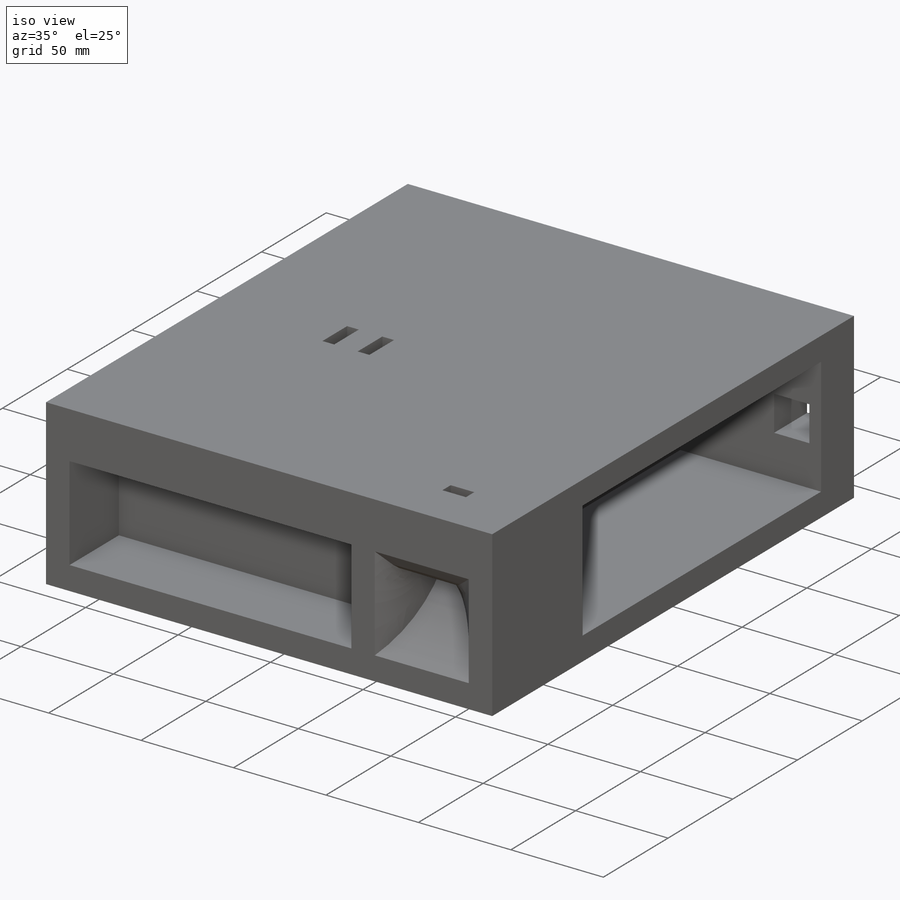
[diagram: iso view]
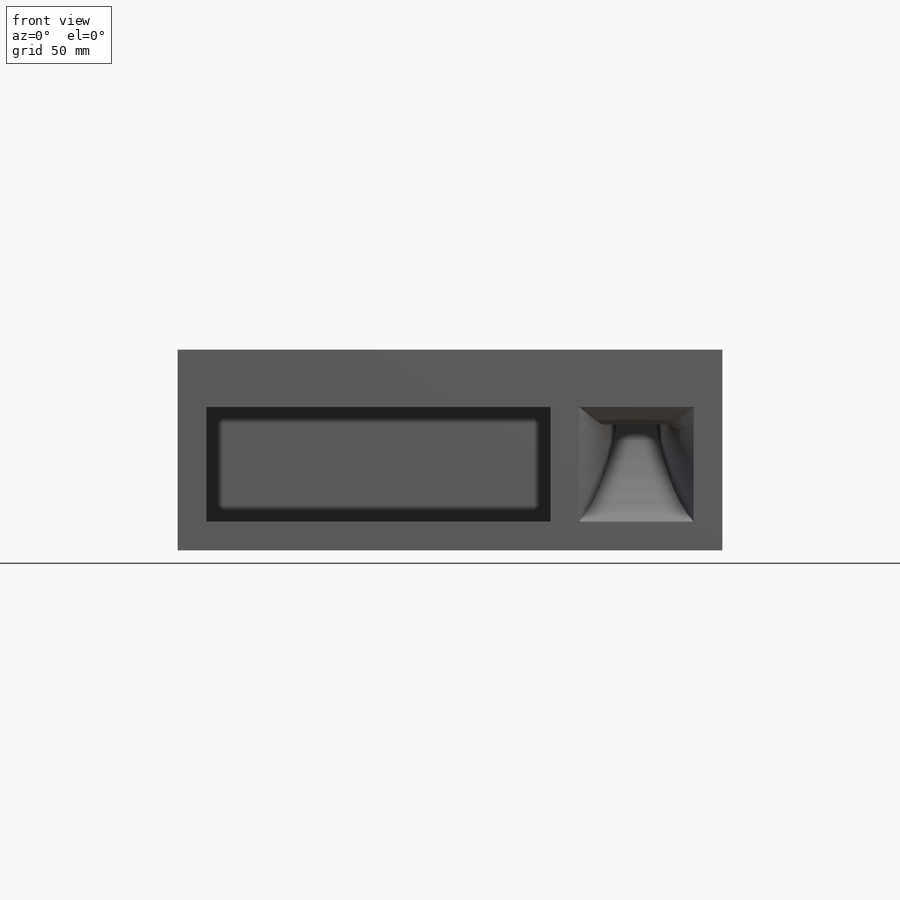
[diagram: front view]
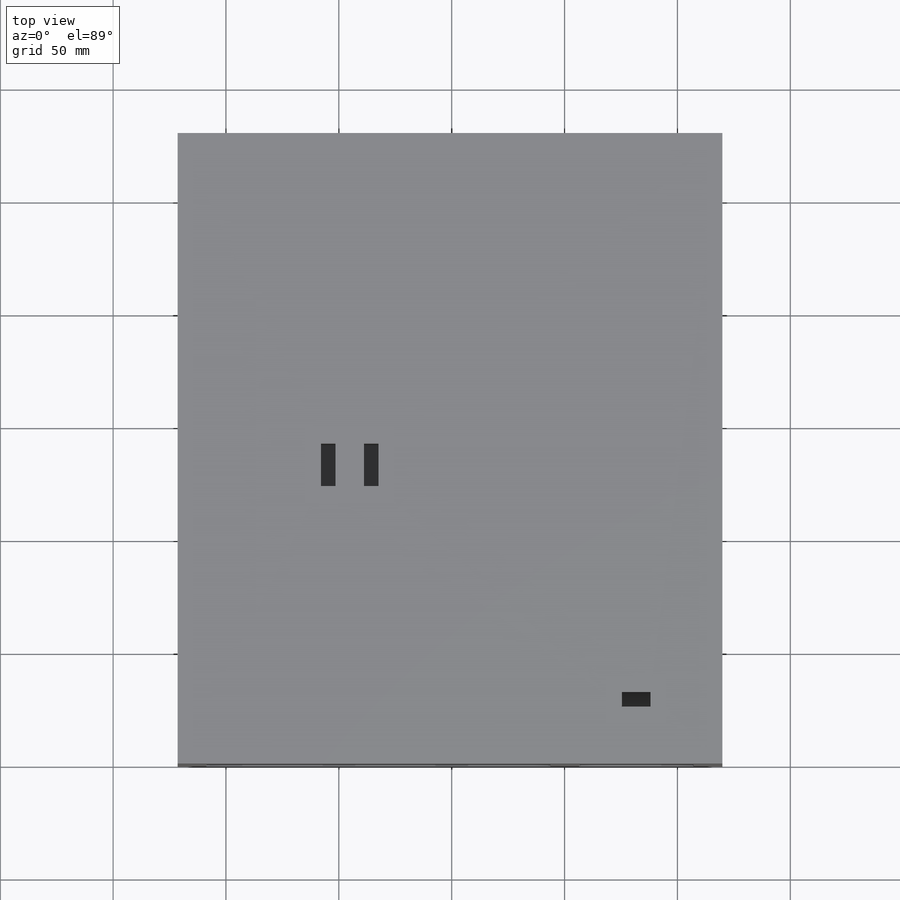
[diagram: top view]
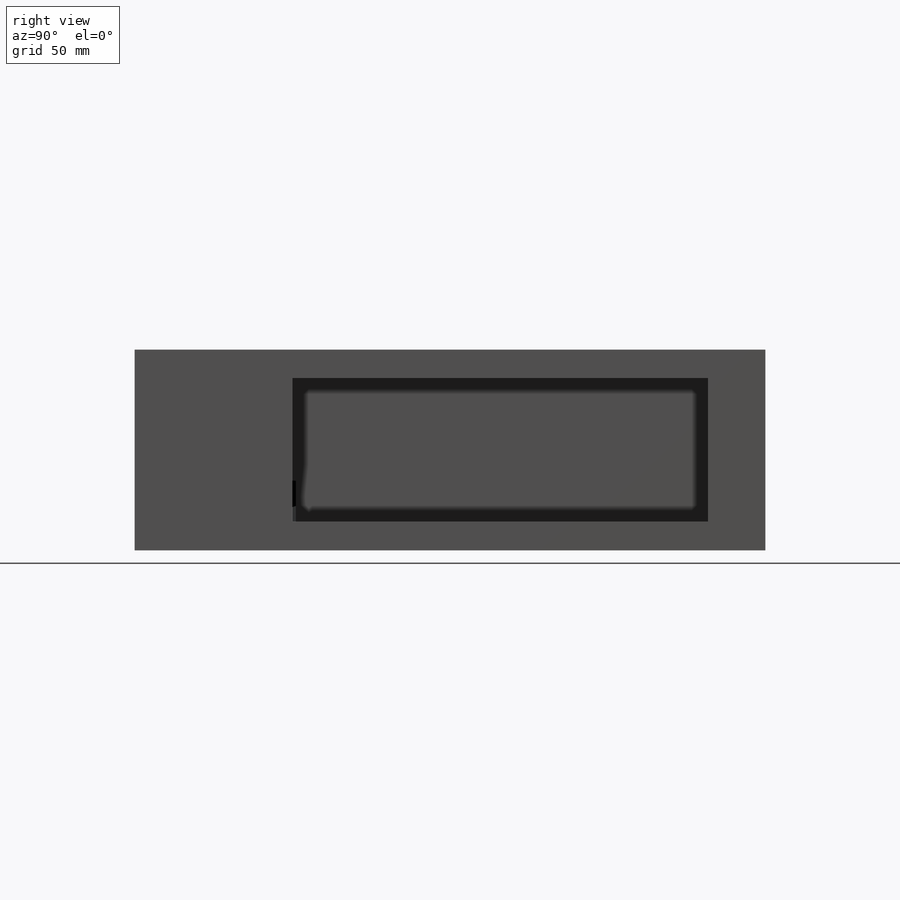
[diagram: right view]
SOLIDWORKS PART (.sldprt)
format: sldprt  version: not decoded by parser v0  size: 431,104 bytes
history: native  units: mm
features: sketch x13, plane x7, cut_extrude x6, material x1, extrude x1 + 1 further entry (+11 scaffold rows collapsed)
feature tree (40):
  scaffold x11  (default folders/planes/origin — collapsed)
  material  "Material <not specified>"
  "Annotations"  RD1=45deg
  sketch  "Sketch5"  dims[D1=50.8mm D2=50.8mm]
  plane  "Plane5"
  plane  "Plane6"  Offset=25.4mm
  plane  "Plane7"
  sketch  "Sketch11"  dims[c1.D1=~19.143064mm c2.D1=45.0deg c2.D2=25.4mm c2.D3=12.7mm]
  plane  "Plane8"
  sketch  "Sketch12"  dims[D1=25.4mm D2=25.4mm D3=12.7mm D4=~10.521024mm]
  plane  "Plane9"
  sketch  "Sketch15"  dims[c1.D1=25.4mm c1.D2=88.9mm c1.D3=228.6mm c1.D4=12.7mm c1.D5=152.4mm c1.D6=12.7mm c2.D3=12.7mm c2.D7=50.8mm c2.D8=25.4mm]
  extrude  "Boss-Extrude2"  Depth=279.4mm
  sketch  "Sketch16"  dims[D1=12.7mm D2=12.7mm D3=25.4mm D4=50.8mm D5=152.4mm]
  cut_extrude  "Cut-Extrude1"  Depth=38.1mm
  sketch  "Sketch17"
  sketch  "Sketch18"  dims[D1=184.15mm D2=63.5mm D3=12.7mm D4=25.4mm]
  cut_extrude  "Cut-Extrude4"  Depth=76.2mm
  sketch  "Sketch19"  dims[D1=19.05mm D2=19.05mm D3=50.8mm]
  cut_extrude  "Cut-Extrude5"  Depth=76.2mm
  sketch  "Sketch20"  dims[c1.D1=38.1mm c1.D2=63.5mm c1.D3=101.6mm c1.D4=63.5mm c2.D3=127.0mm]
  sketch  "Sketch21"  dims[c1.D1=19.05mm c1.D2=19.05mm c1.D3=25.4mm c1.D4=19.05mm c2.D4=90.0deg c3.D4=0.0mm]
  cut_extrude  "Cut-Extrude6"  Depth=203.2mm
  sketch  "Sketch22"  dims[D1=6.35mm D2=19.05mm D3=19.05mm D4=6.35mm]
  plane  "Plane10"
  plane  "Plane11"  Offset=90mm
  sketch  "Sketch23"  dims[D1=19.05mm D2=19.05mm D3=0.0mm]
  cut_extrude  "Cut-Loft7"  [1 undecoded]
  sketch  "Sketch24"  dims[c1.D1=6.35mm c1.D2=19.05mm c1.D3=~6.644729mm c2.D1=19.05mm c2.D2=6.35mm c2.D3=12.7mm c2.D4=12.7mm c2.D5=0.0mm c2.D6=19.05mm c2.D7=6.35mm]
  cut_extrude  "Cut-Extrude7"  Depth=203.2mm
decode coverage: 18 of 20 modeling features carry decoded parameters; 1 rows unclassified (native names shown)
note: ~ marks probable driven/reference dimensions
note: 1 parameter value undecoded
note: suppression state not decoded; provenance and decode notes live in map.json
